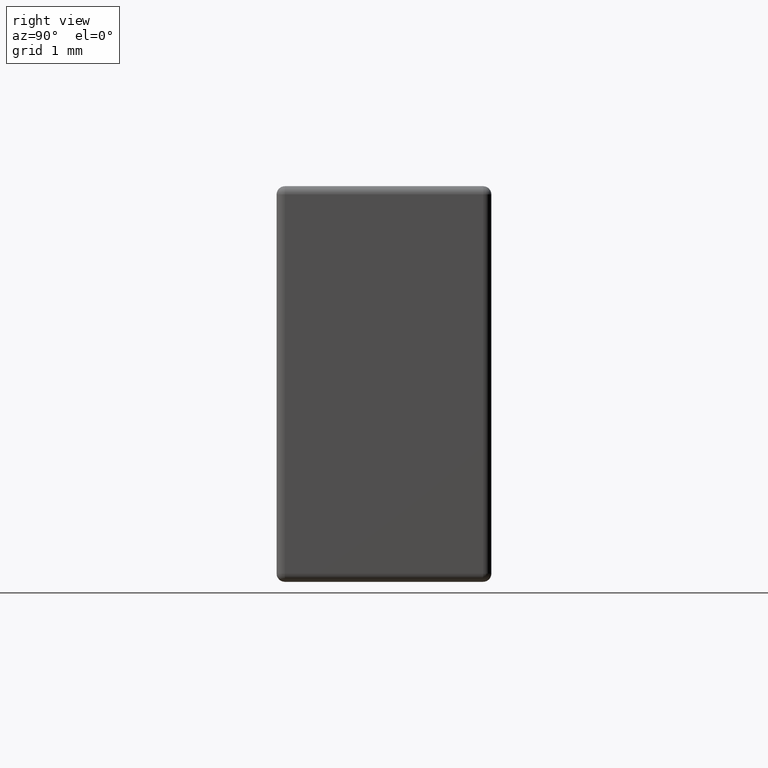
[diagram: clean part render]
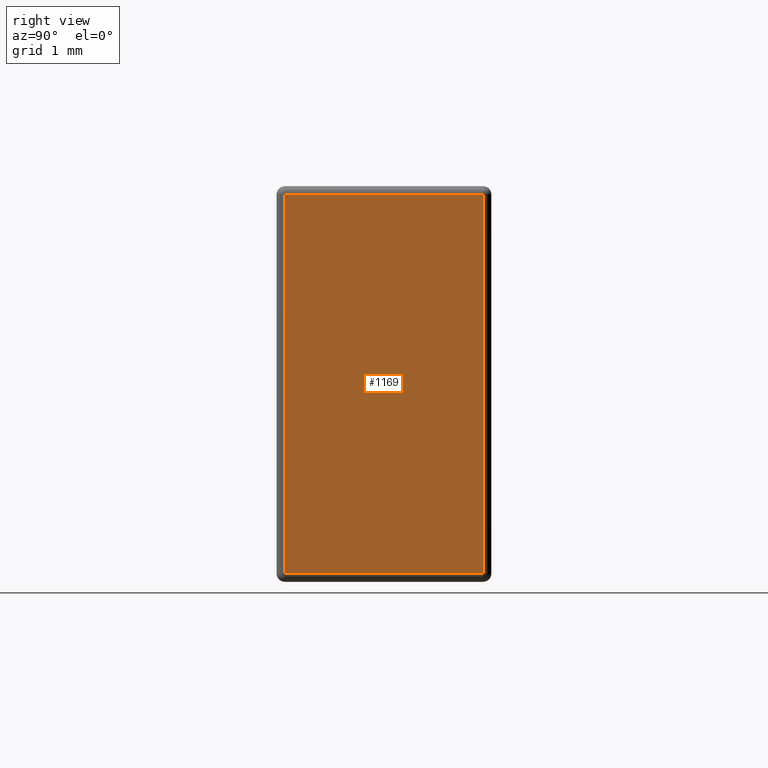
[diagram: same view with one face highlighted and labeled with its STEP entity id]
A machine part, right view. The second image highlights one B-rep face of the part: STEP entity #1169.
In plain terms, the highlighted planar face has unit normal (-1, 0, 0).
Its self-contained STEP definition (entity closure, byte-faithful):
#59 = FACE_OUTER_BOUND ( 'NONE', #3332, .T. ) ;
#94 = CARTESIAN_POINT ( 'NONE',  ( 5.100000000000000533, 0.07280000000000000360, 0.000000000000000000 ) ) ;
#433 = EDGE_CURVE ( 'NONE', #2270, #3180, #1719, .T. ) ;
#441 = VECTOR ( 'NONE', #3543, 1000.000000000000000 ) ;
#571 = DIRECTION ( 'NONE',  ( 0.000000000000000000, 0.000000000000000000, 1.000000000000000000 ) ) ;
#628 = EDGE_CURVE ( 'NONE', #1510, #2270, #3503, .T. ) ;
#880 = ORIENTED_EDGE ( 'NONE', *, *, #433, .T. ) ;
#892 = CARTESIAN_POINT ( 'NONE',  ( 5.100000000000000533, 0.000000000000000000, -3.427200000000000024 ) ) ;
#1169 = ADVANCED_FACE ( 'NONE', ( #59 ), #2584, .F. ) ;
#1306 = CARTESIAN_POINT ( 'NONE',  ( 5.100000000000000533, 1.827199999999999935, -3.427200000000000024 ) ) ;
#1378 = CARTESIAN_POINT ( 'NONE',  ( 5.100000000000000533, 0.000000000000000000, -0.07280000000000000360 ) ) ;
#1453 = VECTOR ( 'NONE', #4152, 1000.000000000000000 ) ;
#1492 = ORIENTED_EDGE ( 'NONE', *, *, #2179, .T. ) ;
#1510 = VERTEX_POINT ( 'NONE', #3833 ) ;
#1548 = DIRECTION ( 'NONE',  ( -1.000000000000000000, 0.000000000000000000, 0.000000000000000000 ) ) ;
#1581 = ORIENTED_EDGE ( 'NONE', *, *, #628, .T. ) ;
#1612 = LINE ( 'NONE', #94, #1453 ) ;
#1719 = LINE ( 'NONE', #4732, #1999 ) ;
#1999 = VECTOR ( 'NONE', #571, 1000.000000000000000 ) ;
#2127 = CARTESIAN_POINT ( 'NONE',  ( 5.100000000000000533, 1.827199999999999935, -0.07280000000000000360 ) ) ;
#2179 = EDGE_CURVE ( 'NONE', #3180, #2362, #3941, .T. ) ;
#2270 = VERTEX_POINT ( 'NONE', #1306 ) ;
#2313 = CARTESIAN_POINT ( 'NONE',  ( 5.100000000000000533, 0.000000000000000000, 0.000000000000000000 ) ) ;
#2362 = VERTEX_POINT ( 'NONE', #4727 ) ;
#2584 = PLANE ( 'NONE',  #3686 ) ;
#3113 = ORIENTED_EDGE ( 'NONE', *, *, #4297, .T. ) ;
#3180 = VERTEX_POINT ( 'NONE', #2127 ) ;
#3332 = EDGE_LOOP ( 'NONE', ( #3113, #1581, #880, #1492 ) ) ;
#3503 = LINE ( 'NONE', #892, #4373 ) ;
#3543 = DIRECTION ( 'NONE',  ( 0.000000000000000000, -1.000000000000000000, 0.000000000000000000 ) ) ;
#3686 = AXIS2_PLACEMENT_3D ( 'NONE', #2313, #1548, #4144 ) ;
#3833 = CARTESIAN_POINT ( 'NONE',  ( 5.100000000000000533, 0.07280000000000000360, -3.427200000000000024 ) ) ;
#3839 = DIRECTION ( 'NONE',  ( 0.000000000000000000, 1.000000000000000000, -0.000000000000000000 ) ) ;
#3941 = LINE ( 'NONE', #1378, #441 ) ;
#4144 = DIRECTION ( 'NONE',  ( 0.000000000000000000, 0.000000000000000000, 1.000000000000000000 ) ) ;
#4152 = DIRECTION ( 'NONE',  ( 0.000000000000000000, 0.000000000000000000, -1.000000000000000000 ) ) ;
#4297 = EDGE_CURVE ( 'NONE', #2362, #1510, #1612, .T. ) ;
#4373 = VECTOR ( 'NONE', #3839, 1000.000000000000000 ) ;
#4727 = CARTESIAN_POINT ( 'NONE',  ( 5.100000000000000533, 0.07280000000000000360, -0.07280000000000000360 ) ) ;
#4732 = CARTESIAN_POINT ( 'NONE',  ( 5.100000000000000533, 1.827199999999999935, 0.000000000000000000 ) ) ;